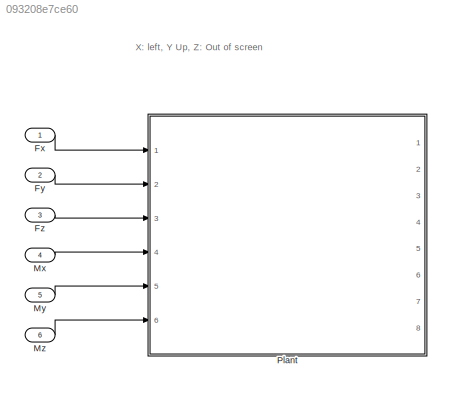
MODEL slx_093208e7ce60
KIND model
CONFIG AbsTol = auto
CONFIG EnableMultiTasking = off
CONFIG FixedStep = auto
CONFIG MaxStep = auto
CONFIG MinStep = auto
CONFIG RelTol = 1e-3
CONFIG SampleTimeConstraint = Unconstrained
CONFIG SolverName = VariableStepAuto
CONFIG StartTime = 0.0
CONFIG StopTime = 10.0
BLOCK [Inport] Fx
BLOCK [Inport] Fy
  Port = 2
BLOCK [Inport] Fz
  Port = 3
BLOCK [Inport] Mx
  Port = 4
BLOCK [Inport] My
  Port = 5
BLOCK [Inport] Mz
  Port = 6
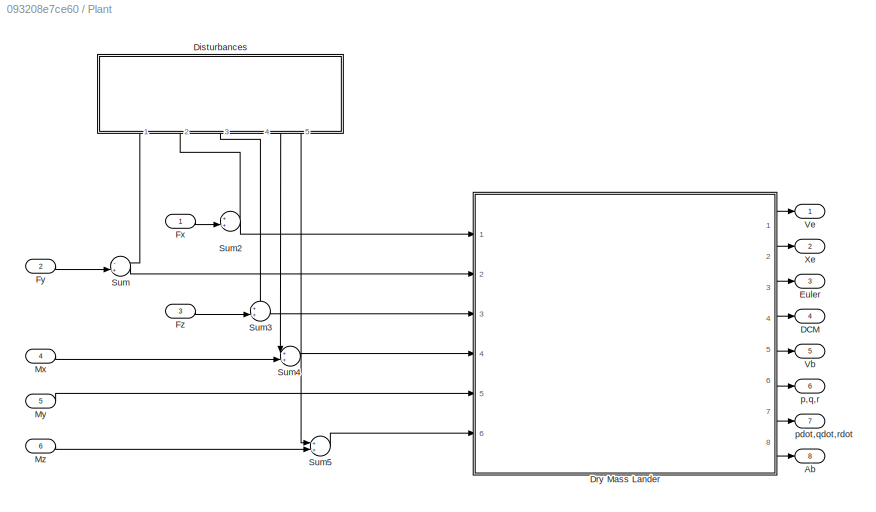
BLOCK [SubSystem] Plant
  Ports = [6, 8]
  RequestExecContextInheritance = off
BLOCK [Outport] Plant/Ab
  Port = 8
BLOCK [Outport] Plant/DCM
  Port = 4
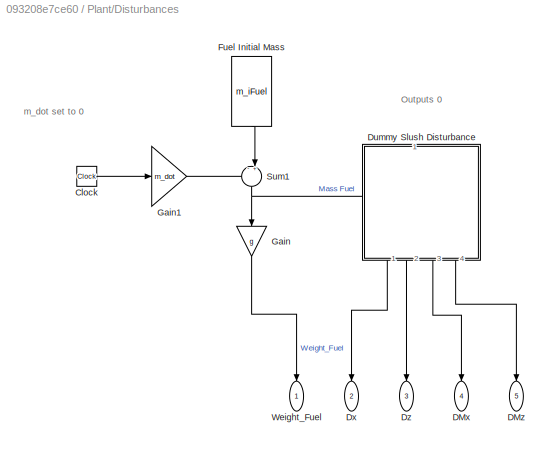
BLOCK [SubSystem] Plant/Disturbances
  NameLocation = left
  Ports = [0, 5]
  RequestExecContextInheritance = off
BLOCK [Clock] Plant/Disturbances/Clock
BLOCK [Outport] Plant/Disturbances/DMx
  NameLocation = left
  Port = 4
BLOCK [Outport] Plant/Disturbances/DMz
  NameLocation = left
  Port = 5
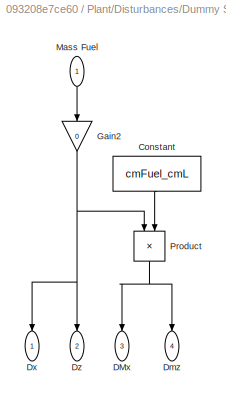
BLOCK [SubSystem] Plant/Disturbances/Dummy Slush Disturbance
  NameLocation = right
  PortSchema = {"entries":[{"content":{"sides":[{"content":{"connectorIds":[]},"type":"ConnectorPlacement.EquallySpacedRectSide","uuid":"6993c7b3-d1aa-4729-9312-d218de701469"},{"content":{"connectorIds":["Out1","Out2","Out3","Out4"],"side":"RIGHT"},"type":"ConnectorPlacement.EquallySpacedRectSide","uuid":"b34002d0-f017-4c93-94f6-1c57307a66f4"},{"content":{"connectorIds":["In1"],"side":"TOP"},"type":"ConnectorPla...<+261ch>
  Ports = [1, 4]
  RequestExecContextInheritance = off
BLOCK [Constant] Plant/Disturbances/Dummy Slush Disturbance/Constant
  NameLocation = left
  Value = cmFuel_cmL
BLOCK [Outport] Plant/Disturbances/Dummy Slush Disturbance/DMx
  NameLocation = left
  Port = 3
BLOCK [Outport] Plant/Disturbances/Dummy Slush Disturbance/Dmz
  NameLocation = left
  Port = 4
BLOCK [Outport] Plant/Disturbances/Dummy Slush Disturbance/Dx
  NameLocation = left
BLOCK [Outport] Plant/Disturbances/Dummy Slush Disturbance/Dz
  NameLocation = left
  Port = 2
BLOCK [Gain] Plant/Disturbances/Dummy Slush Disturbance/Gain2
  Gain = 0
  NameLocation = left
BLOCK [Inport] Plant/Disturbances/Dummy Slush Disturbance/Mass Fuel
  NameLocation = left
BLOCK [Product] Plant/Disturbances/Dummy Slush Disturbance/Product
  NameLocation = left
  Ports = [2, 1]
BLOCK [Outport] Plant/Disturbances/Dx
  NameLocation = left
  Port = 2
BLOCK [Outport] Plant/Disturbances/Dz
  NameLocation = left
  Port = 3
BLOCK [Constant] Plant/Disturbances/Fuel Initial Mass
  NameLocation = left
  Value = m_iFuel
BLOCK [Gain] Plant/Disturbances/Gain
  Gain = g
  NameLocation = left
BLOCK [Gain] Plant/Disturbances/Gain1
  Gain = m_dot
BLOCK [Sum] Plant/Disturbances/Sum1
  Inputs = -+|
  NameLocation = left
  Ports = [2, 1]
BLOCK [Outport] Plant/Disturbances/Weight_Fuel
  NameLocation = left
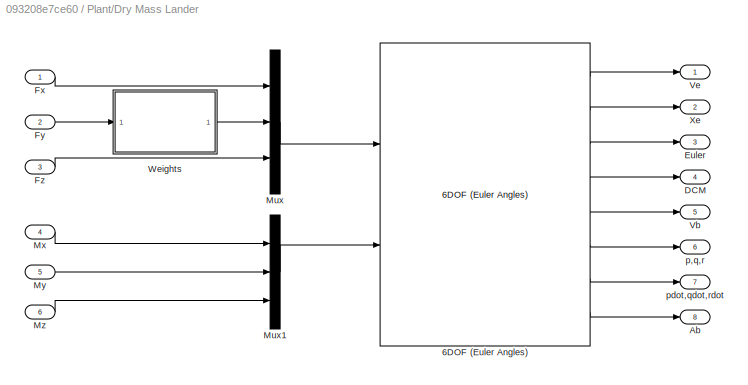
BLOCK [SubSystem] Plant/Dry Mass Lander
  Ports = [6, 8]
  RequestExecContextInheritance = off
BLOCK [Reference] Plant/Dry Mass Lander/6DOF (Euler Angles)  REF=shared6dof/6DOF (Euler Angles)
  Ports = [2, 8]
  SourceBlock = shared6dof/6DOF (Euler Angles)
  SourceProductBaseCode = AE,PW,DR,MT,UV,VE
  SourceType = 6DOF EoM (Body Axis)
BLOCK [Outport] Plant/Dry Mass Lander/Ab
  Port = 8
BLOCK [Outport] Plant/Dry Mass Lander/DCM
  Port = 4
BLOCK [Outport] Plant/Dry Mass Lander/Euler
  Port = 3
BLOCK [Inport] Plant/Dry Mass Lander/Fx
BLOCK [Inport] Plant/Dry Mass Lander/Fy
  Port = 2
BLOCK [Inport] Plant/Dry Mass Lander/Fz
  Port = 3
BLOCK [Mux] Plant/Dry Mass Lander/Mux
  DisplayOption = bar
  Inputs = 3
  Ports = [3, 1]
BLOCK [Mux] Plant/Dry Mass Lander/Mux1
  DisplayOption = bar
  Inputs = 3
  Ports = [3, 1]
BLOCK [Inport] Plant/Dry Mass Lander/Mx
  Port = 4
BLOCK [Inport] Plant/Dry Mass Lander/My
  Port = 5
BLOCK [Inport] Plant/Dry Mass Lander/Mz
  Port = 6
BLOCK [Outport] Plant/Dry Mass Lander/Vb
  Port = 5
BLOCK [Outport] Plant/Dry Mass Lander/Ve
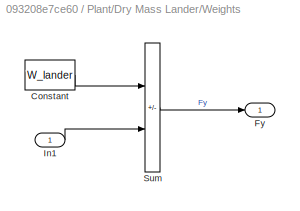
BLOCK [SubSystem] Plant/Dry Mass Lander/Weights
  Ports = [1, 1]
  RequestExecContextInheritance = off
BLOCK [Constant] Plant/Dry Mass Lander/Weights/Constant
  Value = W_lander
BLOCK [Outport] Plant/Dry Mass Lander/Weights/Fy
BLOCK [Inport] Plant/Dry Mass Lander/Weights/In1
BLOCK [Sum] Plant/Dry Mass Lander/Weights/Sum
  IconShape = rectangular
  Inputs = -+
  Ports = [2, 1]
BLOCK [Outport] Plant/Dry Mass Lander/Xe
  Port = 2
BLOCK [Outport] Plant/Dry Mass Lander/p,q,r
  Port = 6
BLOCK [Outport] Plant/Dry Mass Lander/pdot,qdot,rdot
  Port = 7
BLOCK [Outport] Plant/Euler
  Port = 3
BLOCK [Inport] Plant/Fx
BLOCK [Inport] Plant/Fy
  Port = 2
BLOCK [Inport] Plant/Fz
  Port = 3
BLOCK [Inport] Plant/Mx
  Port = 4
BLOCK [Inport] Plant/My
  Port = 5
BLOCK [Inport] Plant/Mz
  Port = 6
BLOCK [Sum] Plant/Sum
  Inputs = -+|
  Ports = [2, 1]
BLOCK [Sum] Plant/Sum2
  Inputs = ++|
  Ports = [2, 1]
BLOCK [Sum] Plant/Sum3
  Inputs = ++|
  Ports = [2, 1]
BLOCK [Sum] Plant/Sum4
  Inputs = ++|
  Ports = [2, 1]
BLOCK [Sum] Plant/Sum5
  Inputs = ++|
  Ports = [2, 1]
BLOCK [Outport] Plant/Vb
  Port = 5
BLOCK [Outport] Plant/Ve
BLOCK [Outport] Plant/Xe
  Port = 2
BLOCK [Outport] Plant/p,q,r
  Port = 6
BLOCK [Outport] Plant/pdot,qdot,rdot
  Port = 7
ANNOTATION (root): X: left, Y Up, Z: Out of screen
ANNOTATION Plant/Disturbances: Outputs 0
ANNOTATION Plant/Disturbances: m_dot set to 0
LINE Fx:1 -> Plant:1
LINE Fy:1 -> Plant:2
LINE Fz:1 -> Plant:3
LINE Mx:1 -> Plant:4
LINE My:1 -> Plant:5
LINE Mz:1 -> Plant:6
LINE Plant/Disturbances/Clock:1 -> Plant/Disturbances/Gain1:1
LINE Plant/Disturbances/Dummy Slush Disturbance/Constant:1 -> Plant/Disturbances/Dummy Slush Disturbance/Product:2
NET Plant/Disturbances/Dummy Slush Disturbance/Gain2:1 -> Plant/Disturbances/Dummy Slush Disturbance/Dx:1, Plant/Disturbances/Dummy Slush Disturbance/Dz:1, Plant/Disturbances/Dummy Slush Disturbance/Product:1
LINE Plant/Disturbances/Dummy Slush Disturbance/Mass Fuel:1 -> Plant/Disturbances/Dummy Slush Disturbance/Gain2:1
NET Plant/Disturbances/Dummy Slush Disturbance/Product:1 -> Plant/Disturbances/Dummy Slush Disturbance/DMx:1, Plant/Disturbances/Dummy Slush Disturbance/Dmz:1
LINE Plant/Disturbances/Dummy Slush Disturbance:1 -> Plant/Disturbances/Dx:1
LINE Plant/Disturbances/Dummy Slush Disturbance:2 -> Plant/Disturbances/Dz:1
LINE Plant/Disturbances/Dummy Slush Disturbance:3 -> Plant/Disturbances/DMx:1
LINE Plant/Disturbances/Dummy Slush Disturbance:4 -> Plant/Disturbances/DMz:1
LINE Plant/Disturbances/Fuel Initial Mass:1 -> Plant/Disturbances/Sum1:2
LINE Plant/Disturbances/Gain1:1 -> Plant/Disturbances/Sum1:1
LINE Plant/Disturbances/Gain:1 -> Plant/Disturbances/Weight_Fuel:1
NET Plant/Disturbances/Sum1:1 -> Plant/Disturbances/Dummy Slush Disturbance:1, Plant/Disturbances/Gain:1
LINE Plant/Disturbances:1 -> Plant/Sum:1
LINE Plant/Disturbances:2 -> Plant/Sum2:1
LINE Plant/Disturbances:3 -> Plant/Sum3:1
LINE Plant/Disturbances:4 -> Plant/Sum4:1
LINE Plant/Disturbances:5 -> Plant/Sum5:1
LINE Plant/Dry Mass Lander/6DOF (Euler Angles):1 -> Plant/Dry Mass Lander/Ve:1
LINE Plant/Dry Mass Lander/6DOF (Euler Angles):2 -> Plant/Dry Mass Lander/Xe:1
LINE Plant/Dry Mass Lander/6DOF (Euler Angles):3 -> Plant/Dry Mass Lander/Euler:1
LINE Plant/Dry Mass Lander/6DOF (Euler Angles):4 -> Plant/Dry Mass Lander/DCM:1
LINE Plant/Dry Mass Lander/6DOF (Euler Angles):5 -> Plant/Dry Mass Lander/Vb:1
LINE Plant/Dry Mass Lander/6DOF (Euler Angles):6 -> Plant/Dry Mass Lander/p,q,r:1
LINE Plant/Dry Mass Lander/6DOF (Euler Angles):7 -> Plant/Dry Mass Lander/pdot,qdot,rdot:1
LINE Plant/Dry Mass Lander/6DOF (Euler Angles):8 -> Plant/Dry Mass Lander/Ab:1
LINE Plant/Dry Mass Lander/Fx:1 -> Plant/Dry Mass Lander/Mux:1
LINE Plant/Dry Mass Lander/Fy:1 -> Plant/Dry Mass Lander/Weights:1
LINE Plant/Dry Mass Lander/Fz:1 -> Plant/Dry Mass Lander/Mux:3
LINE Plant/Dry Mass Lander/Mux1:1 -> Plant/Dry Mass Lander/6DOF (Euler Angles):2
LINE Plant/Dry Mass Lander/Mux:1 -> Plant/Dry Mass Lander/6DOF (Euler Angles):1
LINE Plant/Dry Mass Lander/Mx:1 -> Plant/Dry Mass Lander/Mux1:1
LINE Plant/Dry Mass Lander/My:1 -> Plant/Dry Mass Lander/Mux1:2
LINE Plant/Dry Mass Lander/Mz:1 -> Plant/Dry Mass Lander/Mux1:3
LINE Plant/Dry Mass Lander/Weights/Constant:1 -> Plant/Dry Mass Lander/Weights/Sum:1
LINE Plant/Dry Mass Lander/Weights/In1:1 -> Plant/Dry Mass Lander/Weights/Sum:2
LINE Plant/Dry Mass Lander/Weights/Sum:1 -> Plant/Dry Mass Lander/Weights/Fy:1
LINE Plant/Dry Mass Lander/Weights:1 -> Plant/Dry Mass Lander/Mux:2
LINE Plant/Dry Mass Lander:1 -> Plant/Ve:1
LINE Plant/Dry Mass Lander:2 -> Plant/Xe:1
LINE Plant/Dry Mass Lander:3 -> Plant/Euler:1
LINE Plant/Dry Mass Lander:4 -> Plant/DCM:1
LINE Plant/Dry Mass Lander:5 -> Plant/Vb:1
LINE Plant/Dry Mass Lander:6 -> Plant/p,q,r:1
LINE Plant/Dry Mass Lander:7 -> Plant/pdot,qdot,rdot:1
LINE Plant/Dry Mass Lander:8 -> Plant/Ab:1
LINE Plant/Fx:1 -> Plant/Sum2:2
LINE Plant/Fy:1 -> Plant/Sum:2
LINE Plant/Fz:1 -> Plant/Sum3:2
LINE Plant/Mx:1 -> Plant/Sum4:2
LINE Plant/My:1 -> Plant/Dry Mass Lander:5
LINE Plant/Mz:1 -> Plant/Sum5:2
LINE Plant/Sum2:1 -> Plant/Dry Mass Lander:1
LINE Plant/Sum3:1 -> Plant/Dry Mass Lander:3
LINE Plant/Sum4:1 -> Plant/Dry Mass Lander:4
LINE Plant/Sum5:1 -> Plant/Dry Mass Lander:6
LINE Plant/Sum:1 -> Plant/Dry Mass Lander:2
note: NET lines group one-source signal fan-out (src -> all destinations, sorted); 1:1 wires keep LINE
